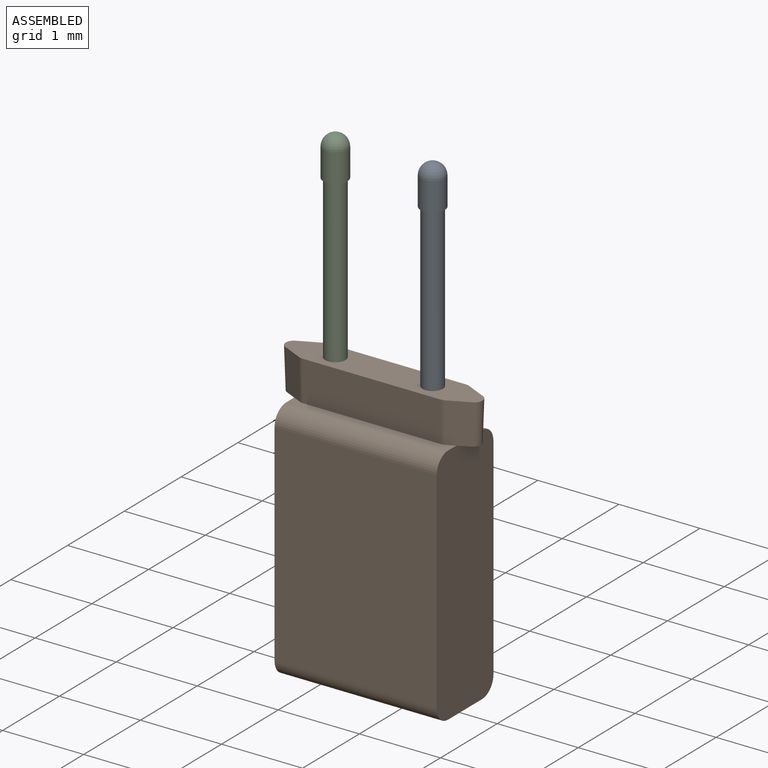
[diagram: assembled view]
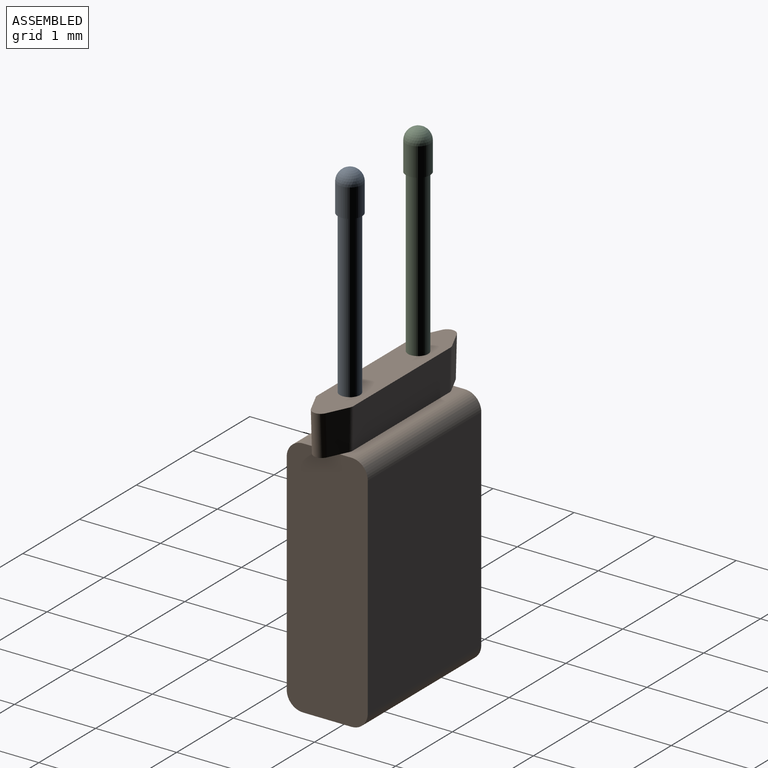
[diagram: assembled view, second angle]
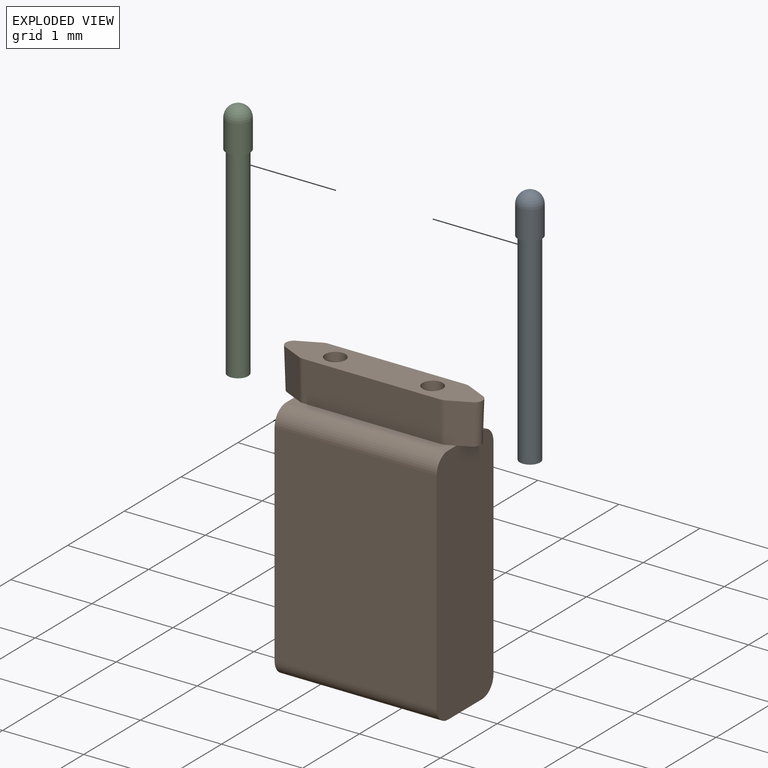
[diagram: exploded view]
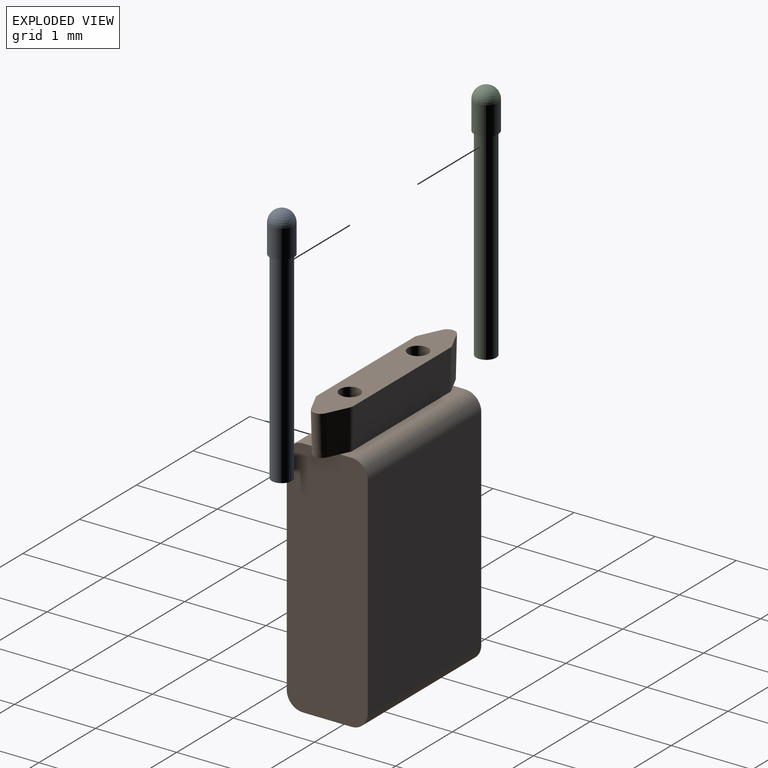
[diagram: exploded view, second angle]
ASSEMBLY  parts=3 mates=2
PART A: 5 faces, bbox 0.3x0.3x3 mm
  f0: cylinder r=0.12mm len=2.5mm, axis (0,0,-1), area 2mm2, adj f1,f3
  f1: plane 0.25x0.25mm, normal (0,0,-1), area 0mm2, adj f0
  f2: cylinder r=0.15mm len=0.35mm, axis (0,0,1), area 0.3mm2, adj f3,f4
  f3: plane 0.3x0.3mm, normal (0,0,-1), area 0mm2, adj f0,f2
  f4: sphere r=0.15mm, area 0.1mm2, adj f2
PART B: 40 faces, bbox 2.4x1x3.5 mm
  f0: plane 2x0.6mm, normal (0,0,-1), area 1mm2, adj f2,f4,f7,f8,f30,f31,f32,f33
  f1: plane 2x0.15mm, normal (0,0,1), area 0.2mm2, adj f2,f4,f9,f13,f14,f15,f22,f23
  f2: plane 3x1mm, normal (-1,0,0), area 3mm2, adj f0,f1,f3,f5,f6,f7,f8,f9
  f3: plane 2.6x2mm, normal (0,-1,0), area 5.2mm2, adj f2,f4,f7,f9
  f4: plane 3x1mm, normal (1,0,0), area 3mm2, adj f0,f1,f3,f5,f6,f7,f8,f9
  f5: plane 2.6x2mm, normal (0,1,0), area 5.2mm2, adj f2,f4,f8,f10
  f6: plane 2x0.15mm, normal (0,0,1), area 0.2mm2, adj f2,f4,f10,f12,f16,f17,f24,f25
  f7: cylinder r=0.2mm len=2mm, axis (1,0,0), area 0.6mm2, adj f0,f2,f3,f4
  f8: cylinder r=0.2mm len=2mm, axis (-1,0,0), area 0.6mm2, adj f0,f2,f4,f5
  f9: cylinder r=0.2mm len=2mm, axis (-1,0,0), area 0.6mm2, adj f1,f2,f3,f4
  f10: cylinder r=0.2mm len=2mm, axis (1,0,0), area 0.6mm2, adj f2,f4,f5,f6
  f11: plane 0.32x0.2mm, normal (0,0,-1), area 0mm2, adj f4,f15,f16,f21
  f12: plane 0.5x0.26mm, normal (-0.43,0.9,-0.02), area 0.1mm2, adj f6,f18,f19,f20,f25
  f13: plane 0.5x0.26mm, normal (-0.43,-0.9,-0.02), area 0.1mm2, adj f1,f18,f19,f20,f22
  f14: plane 1.71x0.5mm, normal (0,-1,-0.02), area 0.9mm2, adj f1,f18,f22,f23
  f15: plane 0.5x0.26mm, normal (0.43,-0.9,-0.02), area 0.1mm2, adj f1,f11,f18,f21,f23
  f16: plane 0.5x0.26mm, normal (0.43,0.9,-0.02), area 0.1mm2, adj f6,f11,f18,f21,f24
  f17: plane 1.71x0.5mm, normal (0,1,-0.02), area 0.9mm2, adj f6,f18,f24,f25
  f18: plane 2.43x0.45mm, normal (0,0,1), area 0.9mm2, adj f12,f13,f14,f15,f16,f17,f20,f21
  f19: plane 0.31x0.2mm, normal (0,0,-1), area 0mm2, adj f2,f12,f13,f20
  f20: cylinder r=0.1mm len=0.5mm, axis (0.04,0,-1), area 0.1mm2, adj f12,f13,f18,f19
  f21: cylinder r=0.1mm len=0.5mm, axis (-0.04,0,-1), area 0.1mm2, adj f11,f15,f16,f18
  f22: cylinder r=0.1mm len=0.5mm, axis (0,0.02,-1), area 0mm2, adj f1,f13,f14,f18
  f23: cylinder r=0.1mm len=0.5mm, axis (0,0.02,-1), area 0mm2, adj f1,f14,f15,f18
  f24: cylinder r=0.1mm len=0.5mm, axis (0,-0.02,-1), area 0mm2, adj f6,f16,f17,f18
  f25: cylinder r=0.1mm len=0.5mm, axis (0,-0.02,-1), area 0mm2, adj f6,f12,f17,f18
  f26: plane 0.25x0.25mm, normal (0,0,1), area 0mm2, adj f27
  f27: cylinder r=0.12mm len=0.5mm, axis (0,0,1), area 0.4mm2, adj f18,f26
  f28: plane 0.25x0.25mm, normal (0,0,1), area 0mm2, adj f29
  f29: cylinder r=0.12mm len=0.5mm, axis (0,0,1), area 0.4mm2, adj f18,f28
  f30: plane 1x0.1mm, normal (1,0,0), area 0.1mm2, adj f0,f31,f33,f34
  f31: plane 1x1mm, normal (0,-1,0), area 1mm2, adj f0,f30,f32,f34
  f32: plane 1x0.1mm, normal (-1,0,0), area 0.1mm2, adj f0,f31,f33,f34
  f33: plane 1x1mm, normal (0,1,0), area 1mm2, adj f0,f30,f32,f34
  f34: plane 1x0.1mm, normal (0,0,-1), area 0.1mm2, adj f30,f31,f32,f33
  f35: plane 1x0.1mm, normal (1,0,0), area 0.1mm2, adj f0,f36,f38,f39
  f36: plane 1x1mm, normal (0,-1,0), area 1mm2, adj f0,f35,f37,f39
  f37: plane 1x0.1mm, normal (-1,0,0), area 0.1mm2, adj f0,f36,f38,f39
  f38: plane 1x1mm, normal (0,1,0), area 1mm2, adj f0,f35,f37,f39
  f39: plane 1x0.1mm, normal (0,0,-1), area 0.1mm2, adj f35,f36,f37,f38
PART C: same geometry as A
PLACE A t=(-0.74,-0.08,2.49)mm
PLACE B t=(-1.34,-0.08,-0.51)mm
PLACE C t=(-1.94,-0.08,2.49)mm
MATE fastened A.f0 <-> B.f27  axis (0,0,-1) through (-0.74,-0.08,2.49)mm
MATE fastened C.f0 <-> B.f29  axis (0,0,-1) through (-1.94,-0.08,2.49)mm
